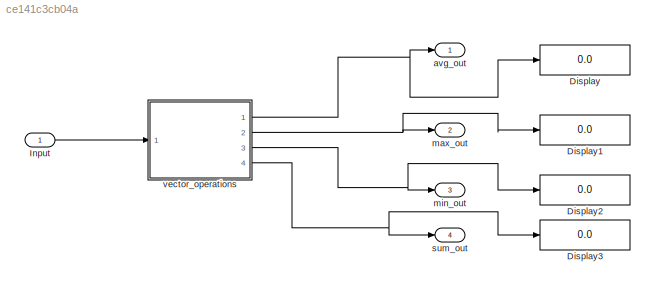
MODEL slx_ce141c3cb04a
KIND model
CONFIG AbsTol = auto
CONFIG EnableMultiTasking = off
CONFIG FixedStep = auto
CONFIG MaxStep = auto
CONFIG MinStep = auto
CONFIG RelTol = 1e-3
CONFIG SampleTimeConstraint = Unconstrained
CONFIG SolverName = VariableStepAuto
CONFIG StartTime = 0.0
CONFIG StopTime = 10.0
BLOCK [Display] Display
  Decimation = 1
  Ports = [1]
BLOCK [Display] Display1
  Decimation = 1
  Ports = [1]
BLOCK [Display] Display2
  Decimation = 1
  Ports = [1]
BLOCK [Display] Display3
  Decimation = 1
  Ports = [1]
BLOCK [Inport] Input
BLOCK [Outport] avg_out
BLOCK [Outport] max_out
  Port = 2
BLOCK [Outport] min_out
  Port = 3
BLOCK [Outport] sum_out
  Port = 4
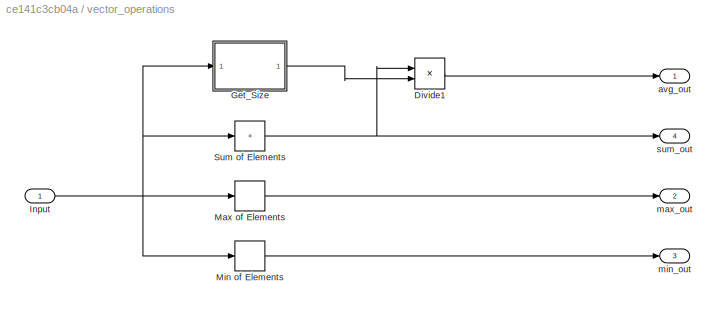
BLOCK [SubSystem] vector_operations
  Ports = [1, 4]
  RequestExecContextInheritance = off
BLOCK [Product] vector_operations/Divide1
  Inputs = */
  OutDataTypeStr = double
  Ports = [2, 1]
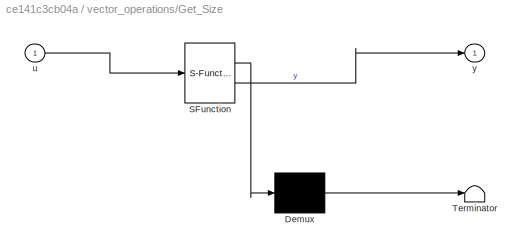
BLOCK [SubSystem] vector_operations/Get_Size
  ErrorFcn = Stateflow.Translate.translate
  PermitHierarchicalResolution = ExplicitOnly
  Ports = [1, 1]
  RequestExecContextInheritance = off
  SFBlockType = MATLAB Function
  TreatAsAtomicUnit = on
BLOCK [Demux] vector_operations/Get_Size/ Demux 
  Outputs = 1
  Ports = [1, 1]
BLOCK [S-Function] vector_operations/Get_Size/ SFunction 
  EnableBusSupport = on
  FunctionName = sf_sfun
  PortCounts = [1 2]
  Ports = [1, 2]
  SFcnIsStateOwnerBlock = off
  SFunctionDeploymentMode = off
  Tag = Stateflow S-Function 2
BLOCK [Terminator] vector_operations/Get_Size/ Terminator 
BLOCK [Inport] vector_operations/Get_Size/u
BLOCK [Outport] vector_operations/Get_Size/y
BLOCK [Inport] vector_operations/Input
BLOCK [MinMax] vector_operations/Max of Elements
  Function = max
  Ports = [1, 1]
BLOCK [MinMax] vector_operations/Min of Elements
  Ports = [1, 1]
BLOCK [Sum] vector_operations/Sum of Elements
  IconShape = rectangular
  Inputs = +
  Ports = [1, 1]
BLOCK [Outport] vector_operations/avg_out
BLOCK [Outport] vector_operations/max_out
  Port = 2
BLOCK [Outport] vector_operations/min_out
  Port = 3
BLOCK [Outport] vector_operations/sum_out
  Port = 4
LINE Input:1 -> vector_operations:1
LINE vector_operations/Divide1:1 -> vector_operations/avg_out:1
LINE vector_operations/Get_Size:1 -> vector_operations/Divide1:2
NET vector_operations/Input:1 -> vector_operations/Get_Size:1, vector_operations/Max of Elements:1, vector_operations/Min of Elements:1, vector_operations/Sum of Elements:1
LINE vector_operations/Max of Elements:1 -> vector_operations/max_out:1
LINE vector_operations/Min of Elements:1 -> vector_operations/min_out:1
NET vector_operations/Sum of Elements:1 -> vector_operations/Divide1:1, vector_operations/sum_out:1
NET vector_operations:1 -> Display:1, avg_out:1
NET vector_operations:2 -> Display1:1, max_out:1
NET vector_operations:3 -> Display2:1, min_out:1
NET vector_operations:4 -> Display3:1, sum_out:1
note: NET lines group one-source signal fan-out (src -> all destinations, sorted); 1:1 wires keep LINE
CHART vector_operations/Get_Size states=1 transitions=1
  STATE_LABEL 'eML_blk_kernel()'
  STATE_LABEL 'SCRIPT:\nfunction y = GetSize(u)\ny = length(u);\n\n\n'
CHART  states=0 transitions=0
